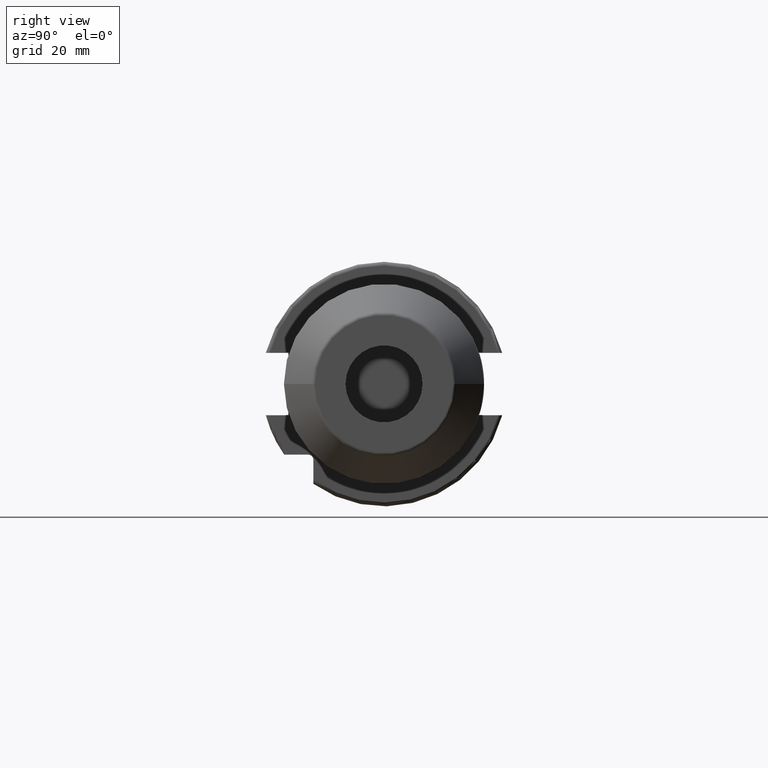
[diagram: clean part render]
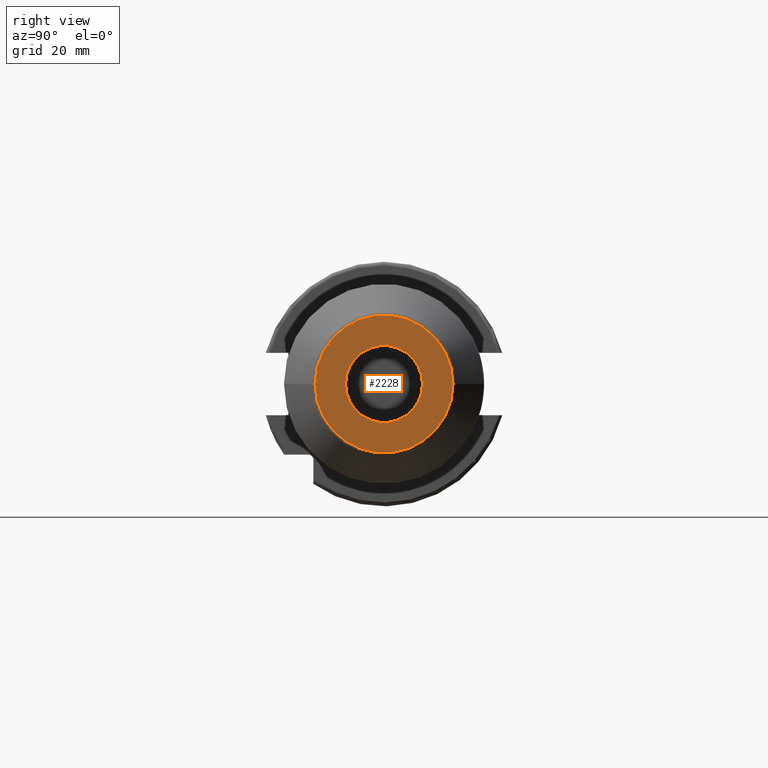
[diagram: same view with one face highlighted and labeled with its STEP entity id]
A machine part, right view. The second image highlights one B-rep face of the part: STEP entity #2228.
In plain terms, the highlighted planar face has unit normal (1, 0, 0).
Its self-contained STEP definition (entity closure, byte-faithful):
#373=CARTESIAN_POINT('',(1.E2,0.E0,0.E0));
#374=DIRECTION('',(1.E0,0.E0,0.E0));
#375=DIRECTION('',(0.E0,1.E0,0.E0));
#376=AXIS2_PLACEMENT_3D('',#373,#374,#375);
#378=CARTESIAN_POINT('',(1.E2,0.E0,0.E0));
#379=DIRECTION('',(1.E0,0.E0,0.E0));
#380=DIRECTION('',(0.E0,-1.E0,0.E0));
#381=AXIS2_PLACEMENT_3D('',#378,#379,#380);
#383=CARTESIAN_POINT('',(1.E2,0.E0,0.E0));
#384=DIRECTION('',(-1.E0,0.E0,0.E0));
#385=DIRECTION('',(0.E0,1.E0,0.E0));
#386=AXIS2_PLACEMENT_3D('',#383,#384,#385);
#388=CARTESIAN_POINT('',(1.E2,0.E0,0.E0));
#389=DIRECTION('',(-1.E0,0.E0,0.E0));
#390=DIRECTION('',(0.E0,-1.E0,0.E0));
#391=AXIS2_PLACEMENT_3D('',#388,#389,#390);
#1664=CARTESIAN_POINT('',(1.E2,1.E1,0.E0));
#1665=CARTESIAN_POINT('',(1.E2,-1.E1,0.E0));
#1666=VERTEX_POINT('',#1664);
#1667=VERTEX_POINT('',#1665);
#1680=CARTESIAN_POINT('',(1.E2,1.791709623135E1,2.817963511651E-14));
#1681=CARTESIAN_POINT('',(1.E2,-1.791709623135E1,-3.037384657148E-14));
#1682=VERTEX_POINT('',#1680);
#1683=VERTEX_POINT('',#1681);
#2213=CARTESIAN_POINT('',(1.E2,0.E0,0.E0));
#2214=DIRECTION('',(1.E0,0.E0,0.E0));
#2215=DIRECTION('',(0.E0,-1.E0,0.E0));
#2216=AXIS2_PLACEMENT_3D('',#2213,#2214,#2215);
#2217=PLANE('',#2216);
#2218=ORIENTED_EDGE('',*,*,#2193,.T.);
#2219=ORIENTED_EDGE('',*,*,#2207,.T.);
#2220=EDGE_LOOP('',(#2218,#2219));
#2221=FACE_OUTER_BOUND('',#2220,.F.);
#2223=ORIENTED_EDGE('',*,*,#2222,.T.);
#2225=ORIENTED_EDGE('',*,*,#2224,.T.);
#2226=EDGE_LOOP('',(#2223,#2225));
#2227=FACE_BOUND('',#2226,.F.);
#2228=ADVANCED_FACE('',(#2221,#2227),#2217,.T.);
#377=CIRCLE('',#376,1.E1);
#382=CIRCLE('',#381,1.E1);
#387=CIRCLE('',#386,1.791709623135E1);
#392=CIRCLE('',#391,1.791709623135E1);
#2193=EDGE_CURVE('',#1682,#1683,#387,.T.);
#2207=EDGE_CURVE('',#1683,#1682,#392,.T.);
#2222=EDGE_CURVE('',#1666,#1667,#377,.T.);
#2224=EDGE_CURVE('',#1667,#1666,#382,.T.);